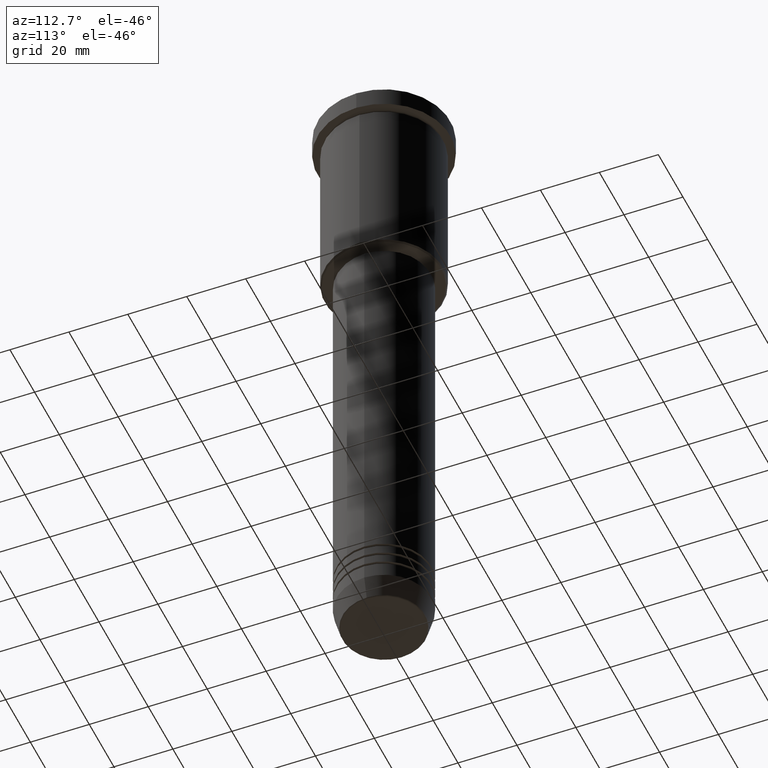
[diagram: clean part render]
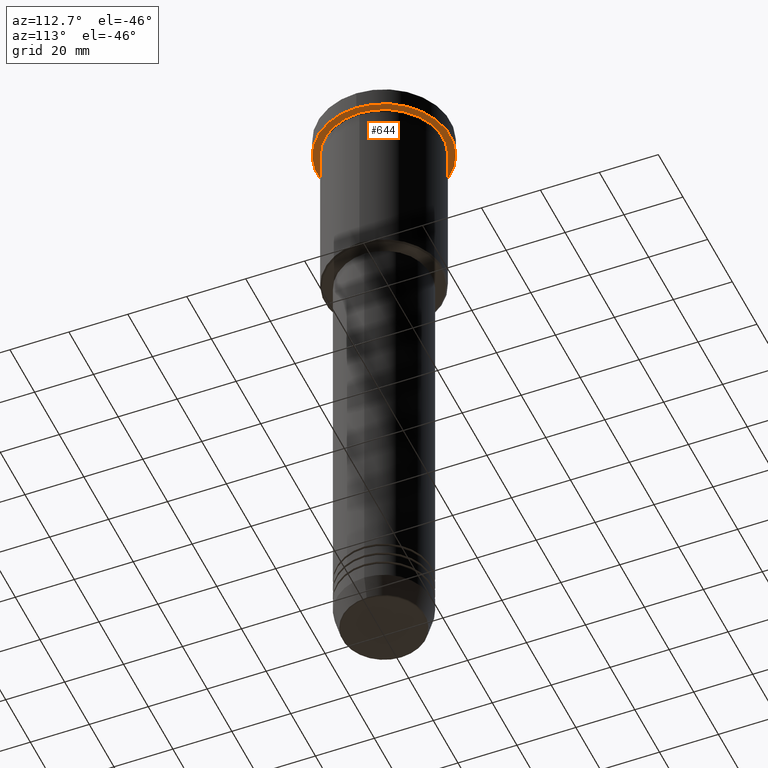
[diagram: same view with one face highlighted and labeled with its STEP entity id]
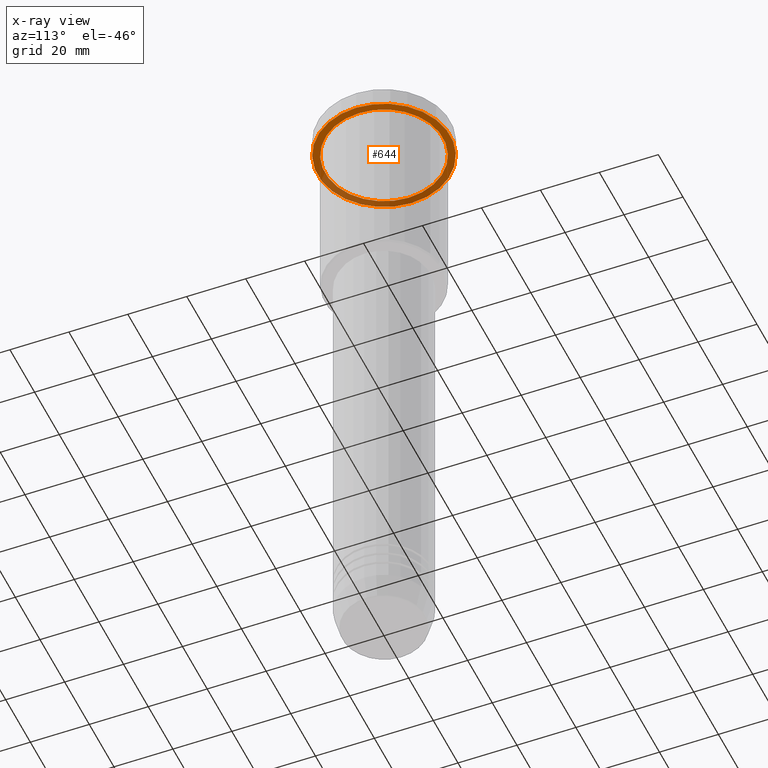
[diagram: x-ray of the same camera — body ghosted, the highlighted face saturated]
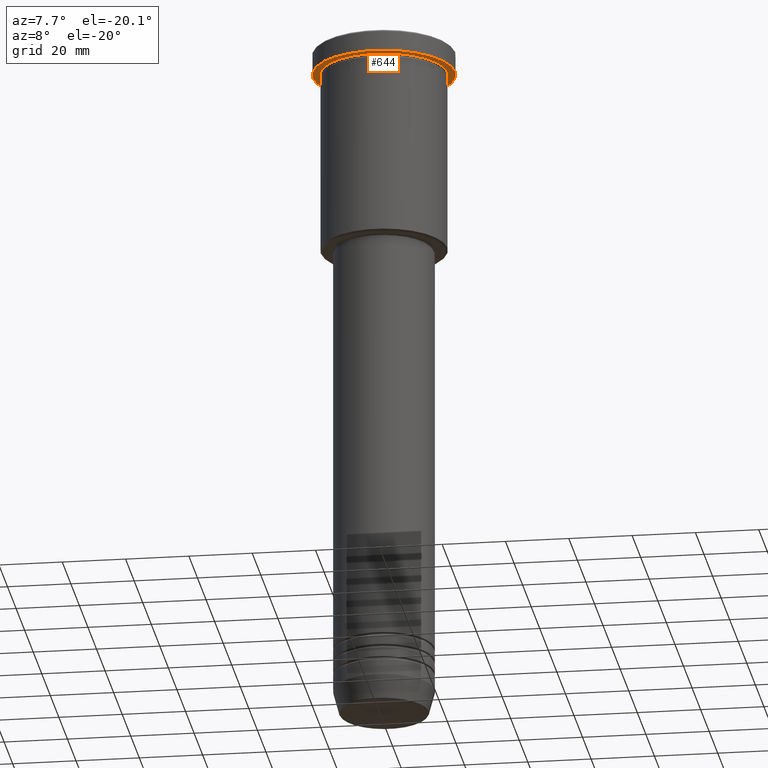
[diagram: same view with one face highlighted and labeled with its STEP entity id]
A machine part, auxiliary view. The second image highlights one B-rep face of the part: STEP entity #644.
The next image is the same camera in x-ray: the body ghosted, the highlighted face saturated — about 36% of this face is hidden behind the body in this view.
A second angle (auxiliary view) of the same face is appended — the face is thin or edge-on in the first view.
In plain terms, the highlighted planar face has unit normal (0, 0, -1).
Its self-contained STEP definition (entity closure, byte-faithful):
#57 = CARTESIAN_POINT ( 'NONE',  ( -22.50000000000000000, 2.755455298081544778E-15, -6.999999999999995559 ) ) ;
#59 = DIRECTION ( 'NONE',  ( -1.000000000000000000, 0.000000000000000000, 0.000000000000000000 ) ) ;
#68 = VERTEX_POINT ( 'NONE', #750 ) ;
#103 = CIRCLE ( 'NONE', #469, 22.50000000000000000 ) ;
#110 = AXIS2_PLACEMENT_3D ( 'NONE', #300, #193, #678 ) ;
#177 = CIRCLE ( 'NONE', #196, 20.00000000000000000 ) ;
#193 = DIRECTION ( 'NONE',  ( -0.000000000000000000, -0.000000000000000000, 1.000000000000000000 ) ) ;
#196 = AXIS2_PLACEMENT_3D ( 'NONE', #958, #1057, #59 ) ;
#221 = PLANE ( 'NONE',  #419 ) ;
#245 = EDGE_CURVE ( 'NONE', #825, #68, #177, .T. ) ;
#300 = CARTESIAN_POINT ( 'NONE',  ( 0.000000000000000000, 0.000000000000000000, -6.999999999999995559 ) ) ;
#322 = DIRECTION ( 'NONE',  ( 0.000000000000000000, 0.000000000000000000, -1.000000000000000000 ) ) ;
#340 = CIRCLE ( 'NONE', #110, 22.50000000000000000 ) ;
#357 = CARTESIAN_POINT ( 'NONE',  ( -20.00000000000000000, 0.000000000000000000, -6.999999999999995559 ) ) ;
#382 = ORIENTED_EDGE ( 'NONE', *, *, #760, .F. ) ;
#419 = AXIS2_PLACEMENT_3D ( 'NONE', #1138, #322, #789 ) ;
#420 = FACE_BOUND ( 'NONE', #698, .T. ) ;
#443 = DIRECTION ( 'NONE',  ( 1.000000000000000000, 0.000000000000000000, 0.000000000000000000 ) ) ;
#468 = AXIS2_PLACEMENT_3D ( 'NONE', #621, #818, #1171 ) ;
#469 = AXIS2_PLACEMENT_3D ( 'NONE', #632, #1001, #443 ) ;
#503 = CARTESIAN_POINT ( 'NONE',  ( 22.50000000000000000, 0.000000000000000000, -6.999999999999995559 ) ) ;
#510 = FACE_OUTER_BOUND ( 'NONE', #534, .T. ) ;
#534 = EDGE_LOOP ( 'NONE', ( #382, #776 ) ) ;
#547 = EDGE_CURVE ( 'NONE', #1114, #1011, #340, .T. ) ;
#621 = CARTESIAN_POINT ( 'NONE',  ( 0.000000000000000000, 0.000000000000000000, -6.999999999999995559 ) ) ;
#632 = CARTESIAN_POINT ( 'NONE',  ( 0.000000000000000000, 0.000000000000000000, -6.999999999999995559 ) ) ;
#644 = ADVANCED_FACE ( 'NONE', ( #420, #510 ), #221, .T. ) ;
#664 = CIRCLE ( 'NONE', #468, 20.00000000000000000 ) ;
#678 = DIRECTION ( 'NONE',  ( 1.000000000000000000, 0.000000000000000000, 0.000000000000000000 ) ) ;
#698 = EDGE_LOOP ( 'NONE', ( #1150, #922 ) ) ;
#750 = CARTESIAN_POINT ( 'NONE',  ( 20.00000000000000000, 2.449293598294706513E-15, -6.999999999999995559 ) ) ;
#760 = EDGE_CURVE ( 'NONE', #1011, #1114, #103, .T. ) ;
#776 = ORIENTED_EDGE ( 'NONE', *, *, #547, .F. ) ;
#789 = DIRECTION ( 'NONE',  ( -1.000000000000000000, 0.000000000000000000, -0.000000000000000000 ) ) ;
#804 = EDGE_CURVE ( 'NONE', #68, #825, #664, .T. ) ;
#818 = DIRECTION ( 'NONE',  ( -0.000000000000000000, -0.000000000000000000, 1.000000000000000000 ) ) ;
#825 = VERTEX_POINT ( 'NONE', #357 ) ;
#922 = ORIENTED_EDGE ( 'NONE', *, *, #804, .T. ) ;
#958 = CARTESIAN_POINT ( 'NONE',  ( 0.000000000000000000, 0.000000000000000000, -6.999999999999995559 ) ) ;
#1001 = DIRECTION ( 'NONE',  ( -0.000000000000000000, -0.000000000000000000, 1.000000000000000000 ) ) ;
#1011 = VERTEX_POINT ( 'NONE', #503 ) ;
#1057 = DIRECTION ( 'NONE',  ( -0.000000000000000000, -0.000000000000000000, 1.000000000000000000 ) ) ;
#1114 = VERTEX_POINT ( 'NONE', #57 ) ;
#1138 = CARTESIAN_POINT ( 'NONE',  ( 0.000000000000000000, 22.50000000000000000, -6.999999999999995559 ) ) ;
#1150 = ORIENTED_EDGE ( 'NONE', *, *, #245, .T. ) ;
#1171 = DIRECTION ( 'NONE',  ( -1.000000000000000000, 0.000000000000000000, 0.000000000000000000 ) ) ;